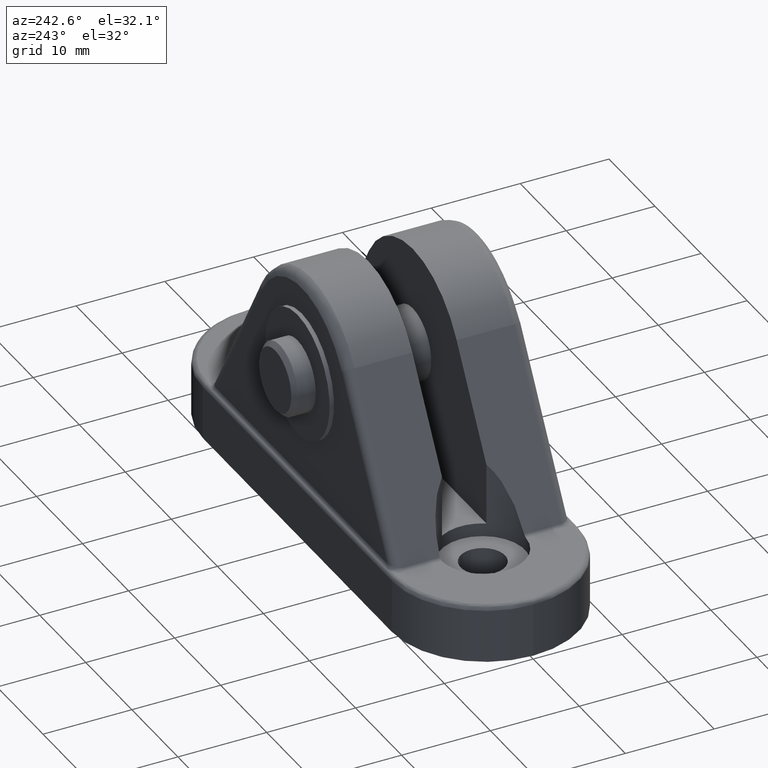
[diagram: clean part render]
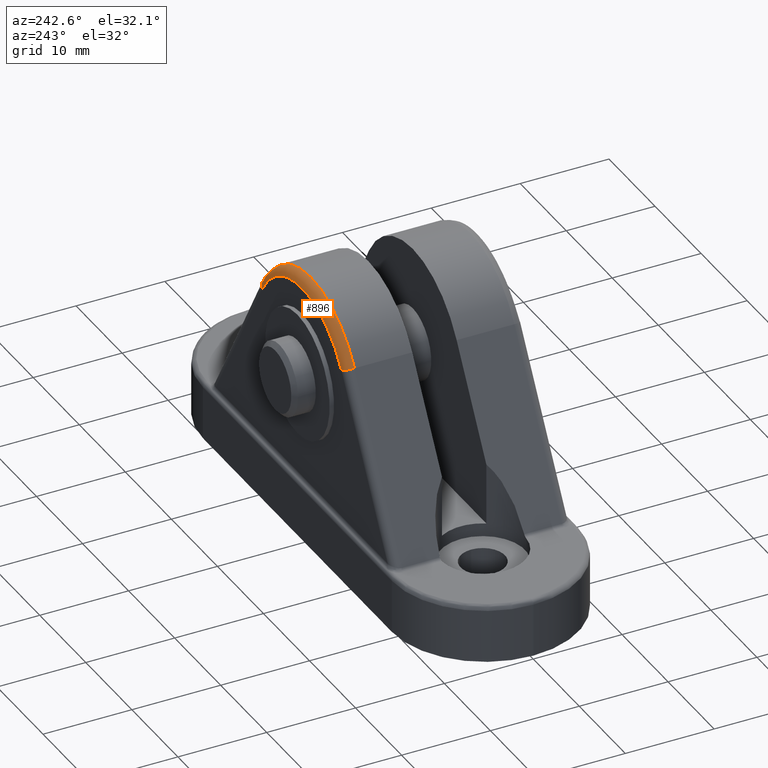
[diagram: same view with one face highlighted and labeled with its STEP entity id]
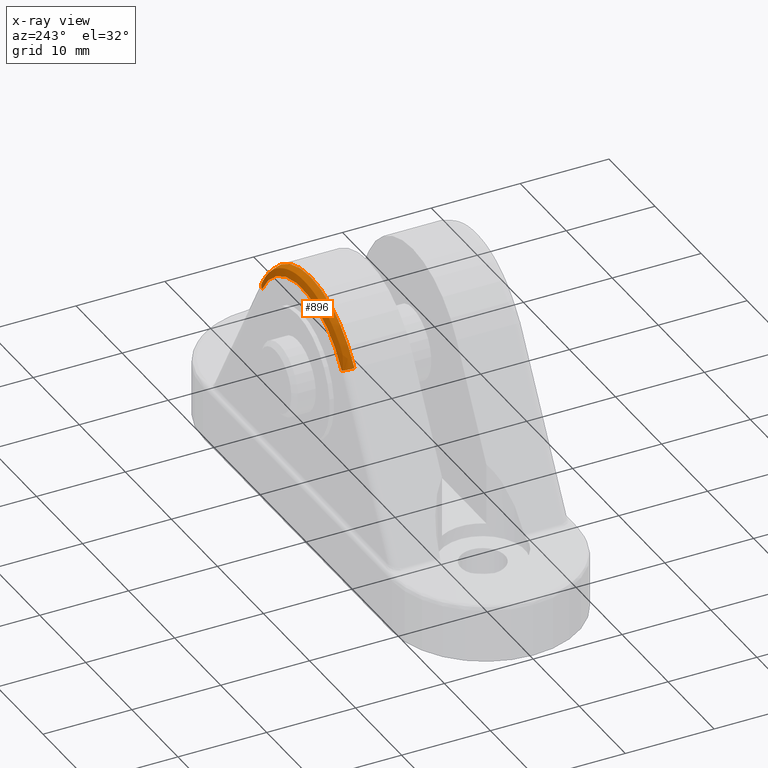
[diagram: x-ray of the same camera — body ghosted, the highlighted face saturated]
A machine part, auxiliary view. The second image highlights one B-rep face of the part: STEP entity #896.
The next image is the same camera in x-ray: the body ghosted, the highlighted face saturated — about 0% of this face is hidden behind the body in this view.
In plain terms, the highlighted face is a freeform B-spline surface patch.
Its self-contained STEP definition (entity closure, byte-faithful):
#624=CARTESIAN_POINT('',(9.507620370680357,19.500000000000000,24.532192593088567));
#625=VERTEX_POINT('',#624);
#632=CARTESIAN_POINT('',(-9.507620370680357,19.500000000000000,24.532192593088567));
#633=VERTEX_POINT('',#632);
#634=CARTESIAN_POINT('',(-1.201780E-031,19.500000000000000,19.0));
#635=DIRECTION('',(6.162976E-033,-1.0,6.123234E-017));
#636=DIRECTION('',(0.864329124607305,3.079537E-017,0.502926599371688));
#637=AXIS2_PLACEMENT_3D('',#634,#635,#636);
#638=CIRCLE('',#637,11.000000000000004);
#639=EDGE_CURVE('',#625,#633,#638,.T.);
#790=CARTESIAN_POINT('',(9.507620370680357,19.500000000000000,24.532192593088567));
#791=CARTESIAN_POINT('',(9.507620370680357,19.630060214677421,24.532192593088567));
#792=CARTESIAN_POINT('',(9.462641740874570,19.893027817343281,24.506020908381196));
#793=CARTESIAN_POINT('',(9.270286752825296,20.225412911472940,24.394095442424280));
#794=CARTESIAN_POINT('',(8.982996635383683,20.447961223884221,24.226930137351808));
#795=CARTESIAN_POINT('',(8.755706077571421,20.500000000000000,24.094676735198149));
#796=CARTESIAN_POINT('',(8.643291246073050,20.500000000000000,24.029265993716884));
#797=CARTESIAN_POINT('',(9.027769174864080,19.500000000000000,25.356864353420587));
#798=CARTESIAN_POINT('',(9.027769174864085,19.630060214677421,25.356864353420590));
#799=CARTESIAN_POINT('',(8.985060624053569,19.893027817343281,25.326791313340046));
#800=CARTESIAN_POINT('',(8.802413824534964,20.225412911472947,25.198181364787203));
#801=CARTESIAN_POINT('',(8.529623287537868,20.447961223884217,25.006097096016187));
#802=CARTESIAN_POINT('',(8.313804122325623,20.500000000000000,24.854128970607917));
#803=CARTESIAN_POINT('',(8.207062886240074,20.500000000000000,24.778967594018724));
#804=CARTESIAN_POINT('',(7.846344087468268,19.500000000000000,26.887966500727273));
#805=CARTESIAN_POINT('',(7.846344087468267,19.630060214677421,26.887966500727273));
#806=CARTESIAN_POINT('',(7.809224619895988,19.893027817343281,26.850650125932731));
#807=CARTESIAN_POINT('',(7.650480016690139,20.225412911472958,26.691063432015120));
#808=CARTESIAN_POINT('',(7.413388396864054,20.447961223884214,26.452714114939141));
#809=CARTESIAN_POINT('',(7.225812551921057,20.500000000000004,26.264143238520507));
#810=CARTESIAN_POINT('',(7.133040079516601,20.500000000000004,26.170878637024792));
#811=CARTESIAN_POINT('',(5.546640447583436,19.500000000000000,28.644116940873086));
#812=CARTESIAN_POINT('',(5.546640447583436,19.630060214677417,28.644116940873086));
#813=CARTESIAN_POINT('',(5.520400412997388,19.893027817343270,28.598492573389407));
#814=CARTESIAN_POINT('',(5.408182642891770,20.225412911472937,28.403376032490470));
#815=CARTESIAN_POINT('',(5.240580769503272,20.447961223884224,28.111961421836870));
#816=CARTESIAN_POINT('',(5.107981974835047,20.500000000000000,27.881407757130457));
#817=CARTESIAN_POINT('',(5.042400406894032,20.500000000000000,27.767379037157358));
#818=CARTESIAN_POINT('',(2.870374605585434,19.500000000000004,29.748974421433239));
#819=CARTESIAN_POINT('',(2.870374605585434,19.630060214677421,29.748974421433239));
#820=CARTESIAN_POINT('',(2.856795443633756,19.893027817343281,29.698123196579509));
#821=CARTESIAN_POINT('',(2.798722986864550,20.225412911472944,29.480653549521133));
#822=CARTESIAN_POINT('',(2.711989374731376,20.447961223884221,29.155853651806080));
#823=CARTESIAN_POINT('',(2.643369781205579,20.500000000000007,28.898887103195101));
#824=CARTESIAN_POINT('',(2.609431459623119,20.500000000000007,28.771794928575684));
#825=CARTESIAN_POINT('',(5.551115E-016,19.499999999999989,30.125512789283377));
#826=CARTESIAN_POINT('',(6.661338E-016,19.630060214677407,30.125512789283377));
#827=CARTESIAN_POINT('',(1.110223E-016,19.893027817343267,30.072880237536570));
#828=CARTESIAN_POINT('',(1.221245E-015,20.225412911472933,29.847792592448840));
#829=CARTESIAN_POINT('',(-5.551115E-016,20.447961223884214,29.511614900111873));
#830=CARTESIAN_POINT('',(-1.443290E-015,20.499999999999996,29.245646770418578));
#831=CARTESIAN_POINT('',(-1.776357E-015,20.499999999999996,29.114102535712156));
#832=CARTESIAN_POINT('',(-2.870374605585431,19.500000000000004,29.748974421433239));
#833=CARTESIAN_POINT('',(-2.870374605585431,19.630060214677421,29.748974421433239));
#834=CARTESIAN_POINT('',(-2.856795443633749,19.893027817343274,29.698123196579516));
#835=CARTESIAN_POINT('',(-2.798722986864552,20.225412911472940,29.480653549521140));
#836=CARTESIAN_POINT('',(-2.711989374731376,20.447961223884221,29.155853651806083));
#837=CARTESIAN_POINT('',(-2.643369781205581,20.500000000000000,28.898887103195101));
#838=CARTESIAN_POINT('',(-2.609431459623123,20.500000000000000,28.771794928575677));
#839=CARTESIAN_POINT('',(-5.546640447583440,19.499999999999996,28.644116940873083));
#840=CARTESIAN_POINT('',(-5.546640447583439,19.630060214677421,28.644116940873083));
#841=CARTESIAN_POINT('',(-5.520400412997395,19.893027817343285,28.598492573389397));
#842=CARTESIAN_POINT('',(-5.408182642891772,20.225412911472940,28.403376032490460));
#843=CARTESIAN_POINT('',(-5.240580769503280,20.447961223884217,28.111961421836860));
#844=CARTESIAN_POINT('',(-5.107981974835056,20.499999999999996,27.881407757130440));
#845=CARTESIAN_POINT('',(-5.042400406894041,20.499999999999996,27.767379037157340));
#846=CARTESIAN_POINT('',(-7.846344087468260,19.500000000000000,26.887966500727270));
#847=CARTESIAN_POINT('',(-7.846344087468261,19.630060214677414,26.887966500727273));
#848=CARTESIAN_POINT('',(-7.809224619895973,19.893027817343267,26.850650125932731));
#849=CARTESIAN_POINT('',(-7.650480016690137,20.225412911472937,26.691063432015135));
#850=CARTESIAN_POINT('',(-7.413388396864048,20.447961223884221,26.452714114939127));
#851=CARTESIAN_POINT('',(-7.225812551921058,20.500000000000000,26.264143238520514));
#852=CARTESIAN_POINT('',(-7.133040079516603,20.500000000000000,26.170878637024799));
#853=CARTESIAN_POINT('',(-9.027769174864082,19.500000000000000,25.356864353420594));
#854=CARTESIAN_POINT('',(-9.027769174864078,19.630060214677417,25.356864353420590));
#855=CARTESIAN_POINT('',(-8.985060624053572,19.893027817343274,25.326791313340053));
#856=CARTESIAN_POINT('',(-8.802413824534968,20.225412911472940,25.198181364787207));
#857=CARTESIAN_POINT('',(-8.529623287537872,20.447961223884221,25.006097096016191));
#858=CARTESIAN_POINT('',(-8.313804122325625,20.500000000000000,24.854128970607910));
#859=CARTESIAN_POINT('',(-8.207062886240077,20.500000000000000,24.778967594018720));
#860=CARTESIAN_POINT('',(-9.507620370680357,19.500000000000000,24.532192593088570));
#861=CARTESIAN_POINT('',(-9.507620370680357,19.630060214677417,24.532192593088570));
#862=CARTESIAN_POINT('',(-9.462641740874570,19.893027817343274,24.506020908381203));
#863=CARTESIAN_POINT('',(-9.270286752825296,20.225412911472940,24.394095442424280));
#864=CARTESIAN_POINT('',(-8.982996635383685,20.447961223884221,24.226930137351811));
#865=CARTESIAN_POINT('',(-8.755706077571427,20.500000000000000,24.094676735198146));
#866=CARTESIAN_POINT('',(-8.643291246073055,20.500000000000000,24.029265993716880));
#867=B_SPLINE_SURFACE_WITH_KNOTS('',3,3,((#790,#797,#804,#811,#818,#825,#832,#839,#846,#853,#860),(#791,#798,#805,#812,#819,#826,#833,#840,#847,#854,#861),(#792,#799,#806,#813,#820,#827,#834,#841,#848,#855,#862),(#793,#800,#807,#814,#821,#828,#835,#842,#849,#856,#863),(#794,#801,#808,#815,#822,#829,#836,#843,#850,#857,#864),(#795,#802,#809,#816,#823,#830,#837,#844,#851,#858,#865),(#796,#803,#810,#817,#824,#831,#838,#845,#852,#859,#866)),.UNSPECIFIED.,.F.,.F.,.U.,(4,1,1,1,4),(4,1,1,1,1,1,1,1,4),(0.0,0.390180644032256,0.780361288064511,1.170541932096768,1.560722576129024),(0.0,2.758979091296076,5.517958182592156,8.276937273888233,11.035916365184312,13.794895456480390,16.553874547776466,19.312853639072550,22.071832730368623),.UNSPECIFIED.);
#868=CARTESIAN_POINT('',(8.643291246073051,20.500000000000000,24.029265993716884));
#869=VERTEX_POINT('',#868);
#870=CARTESIAN_POINT('',(8.643291246073007,19.500000000000000,24.029265993716862));
#871=DIRECTION('',(0.502926599371690,-5.292489E-017,-0.864329124607304));
#872=DIRECTION('',(0.864329124607304,1.807152E-015,0.502926599371690));
#873=AXIS2_PLACEMENT_3D('',#870,#871,#872);
#874=CIRCLE('',#873,1.000000000000001);
#875=EDGE_CURVE('',#869,#625,#874,.T.);
#876=ORIENTED_EDGE('',*,*,#875,.F.);
#877=CARTESIAN_POINT('',(-8.643291246073055,20.500000000000000,24.029265993716876));
#878=VERTEX_POINT('',#877);
#879=CARTESIAN_POINT('',(-6.317050E-032,20.500000000000000,19.0));
#880=DIRECTION('',(3.081488E-033,-1.0,6.123234E-017));
#881=DIRECTION('',(0.864329124607305,3.079537E-017,0.502926599371688));
#882=AXIS2_PLACEMENT_3D('',#879,#880,#881);
#883=CIRCLE('',#882,10.000000000000005);
#884=EDGE_CURVE('',#869,#878,#883,.T.);
#885=ORIENTED_EDGE('',*,*,#884,.T.);
#886=CARTESIAN_POINT('',(-8.643291246073053,19.500000000000000,24.029265993716884));
#887=DIRECTION('',(0.502926599371691,5.292489E-017,0.864329124607303));
#888=DIRECTION('',(-0.864329124607303,3.079537E-017,0.502926599371691));
#889=AXIS2_PLACEMENT_3D('',#886,#887,#888);
#890=CIRCLE('',#889,0.999999999999999);
#891=EDGE_CURVE('',#878,#633,#890,.T.);
#892=ORIENTED_EDGE('',*,*,#891,.T.);
#893=ORIENTED_EDGE('',*,*,#639,.F.);
#894=EDGE_LOOP('',(#876,#885,#892,#893));
#895=FACE_OUTER_BOUND('',#894,.T.);
#896=ADVANCED_FACE('',(#895),#867,.T.);